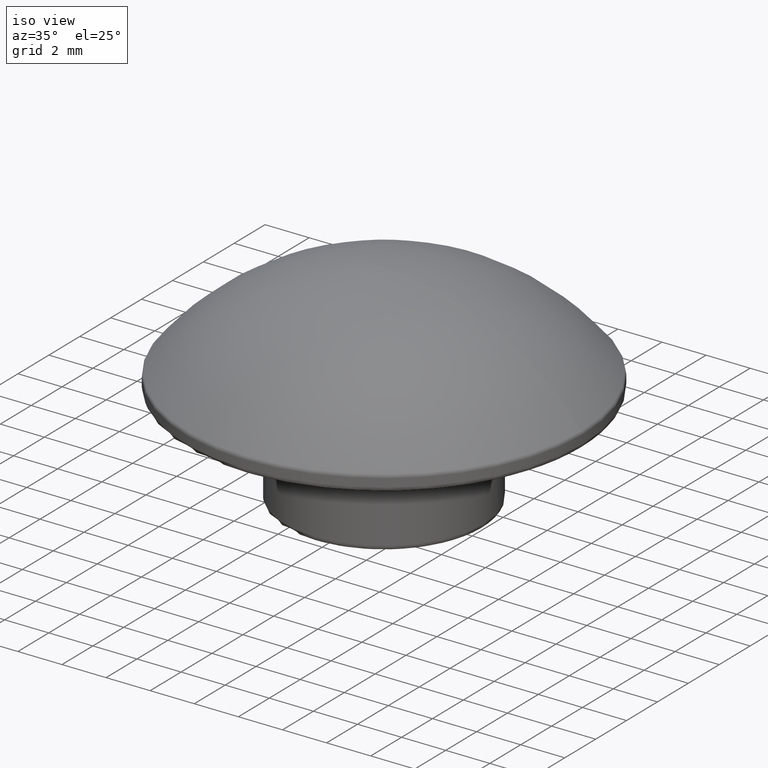
[diagram: clean part render]
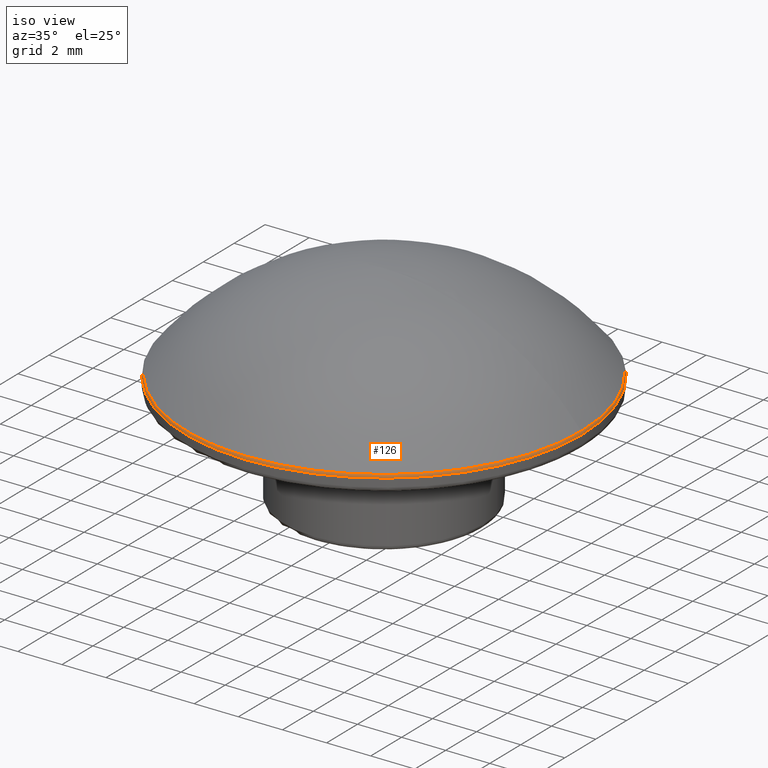
[diagram: same view with one face highlighted and labeled with its STEP entity id]
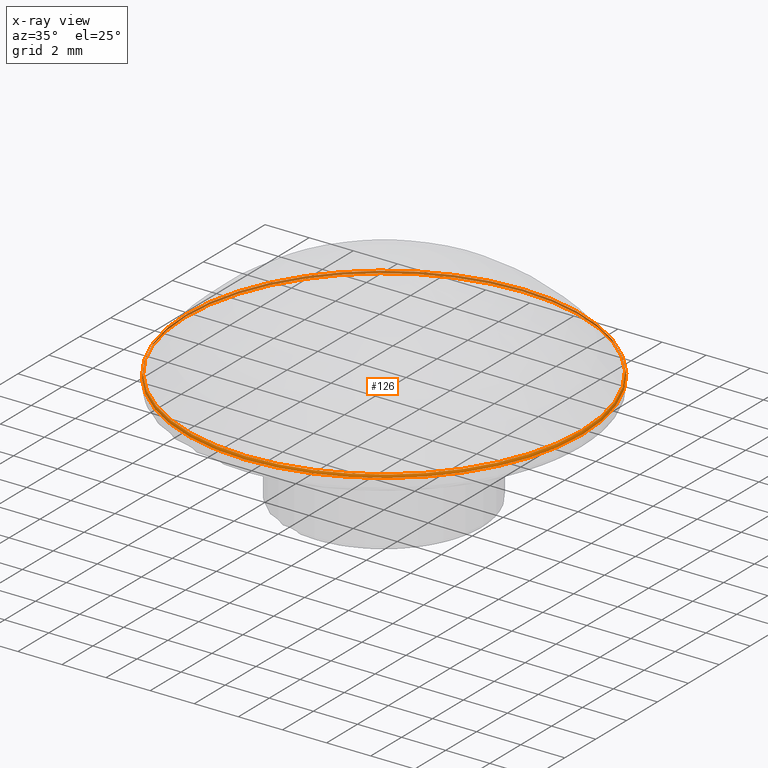
[diagram: x-ray of the same camera — body ghosted, the highlighted face saturated]
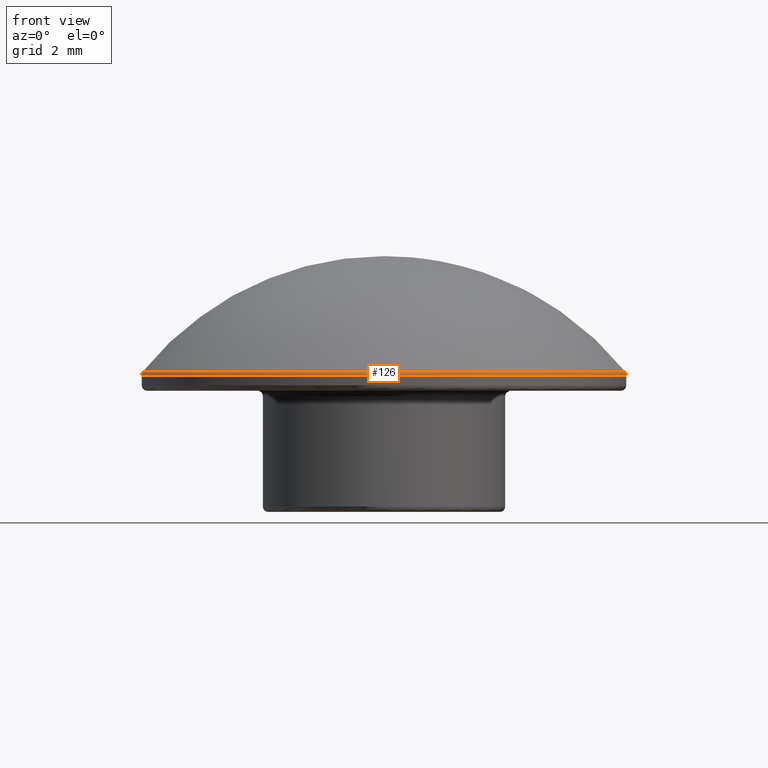
[diagram: same view with one face highlighted and labeled with its STEP entity id]
A machine part, iso view. The second image highlights one B-rep face of the part: STEP entity #126.
The next image is the same camera in x-ray: the body ghosted, the highlighted face saturated — about 34% of this face is hidden behind the body in this view.
A second angle (front view) of the same face is appended — the face is thin or edge-on in the first view.
In plain terms, the highlighted toroidal blend (fillet) surface has major radius 8.7999 mm and minor (blend) radius 0.2 mm.
Its self-contained STEP definition (entity closure, byte-faithful):
#23=FACE_BOUND('',#46,.T.);
#33=FACE_OUTER_BOUND('',#45,.T.);
#45=EDGE_LOOP('',(#100));
#46=EDGE_LOOP('',(#101));
#67=CIRCLE('',#141,8.99992883305196);
#68=CIRCLE('',#142,8.95567978584934);
#78=VERTEX_POINT('',#213);
#79=VERTEX_POINT('',#215);
#89=EDGE_CURVE('',#78,#78,#67,.T.);
#90=EDGE_CURVE('',#79,#79,#68,.T.);
#100=ORIENTED_EDGE('',*,*,#89,.T.);
#101=ORIENTED_EDGE('',*,*,#90,.T.);
#122=TOROIDAL_SURFACE('',#140,8.79992883305196,0.2);
#126=ADVANCED_FACE('',(#33,#23),#122,.T.);
#140=AXIS2_PLACEMENT_3D('',#212,#165,#166);
#141=AXIS2_PLACEMENT_3D('',#214,#167,#168);
#142=AXIS2_PLACEMENT_3D('',#216,#169,#170);
#165=DIRECTION('center_axis',(0.,0.,1.));
#166=DIRECTION('ref_axis',(1.,0.,0.));
#167=DIRECTION('center_axis',(0.,0.,1.));
#168=DIRECTION('ref_axis',(1.,6.12323399573677E-17,0.));
#169=DIRECTION('center_axis',(0.,0.,-1.));
#170=DIRECTION('ref_axis',(1.,6.12323399573677E-17,0.));
#212=CARTESIAN_POINT('Origin',(0.,0.,7.08881178570999));
#213=CARTESIAN_POINT('',(-8.99992883305196,-1.65326010569266E-15,7.08881178570999));
#214=CARTESIAN_POINT('Origin',(0.,0.,7.08881178570999));
#215=CARTESIAN_POINT('',(-8.95567978584934,5.48377229196452E-16,7.21427748103229));
#216=CARTESIAN_POINT('Origin',(0.,0.,7.21427748103229));